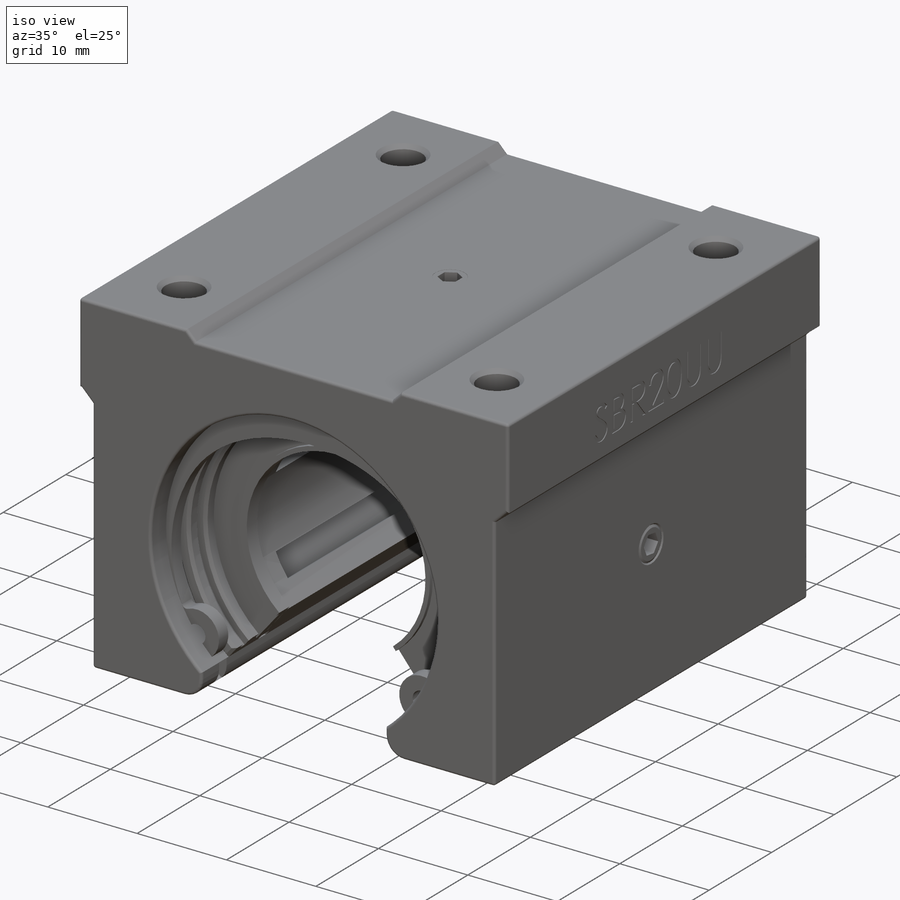
[diagram: iso view]
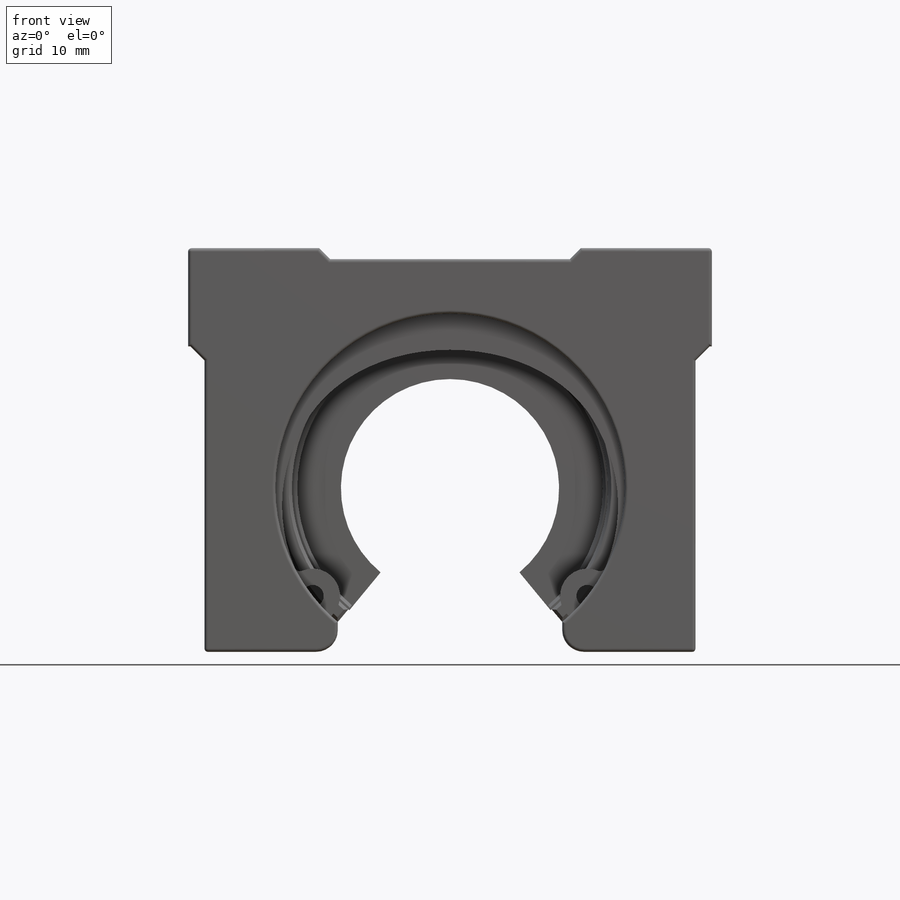
[diagram: front view]
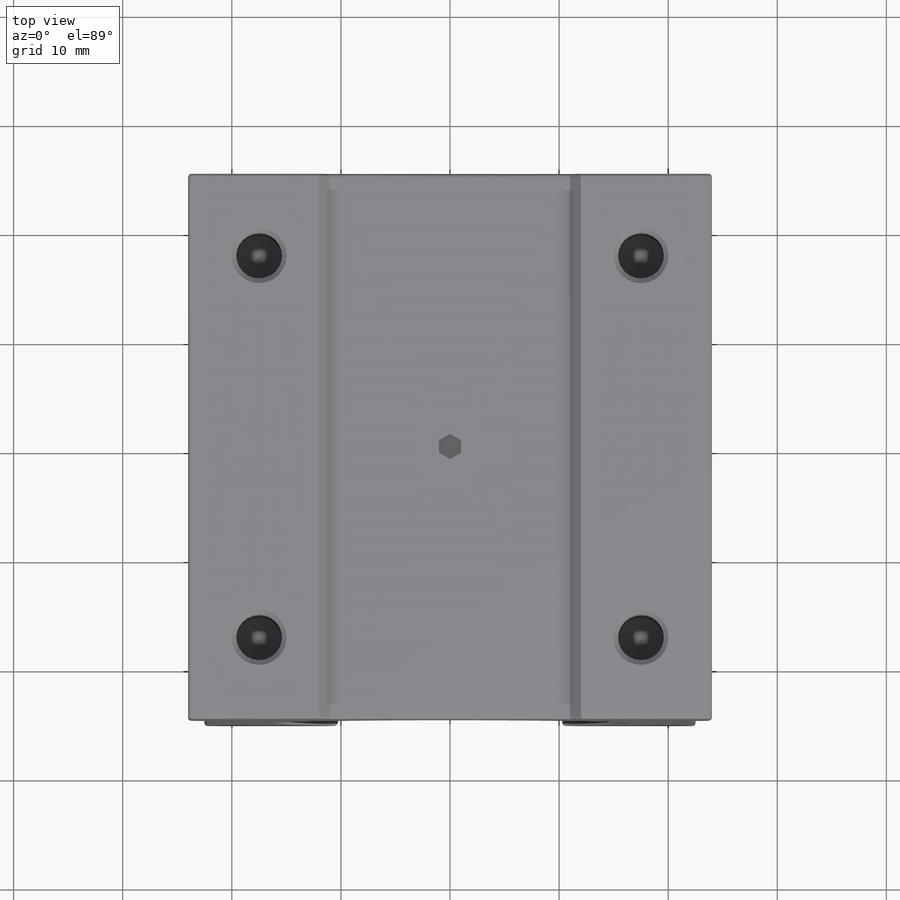
[diagram: top view]
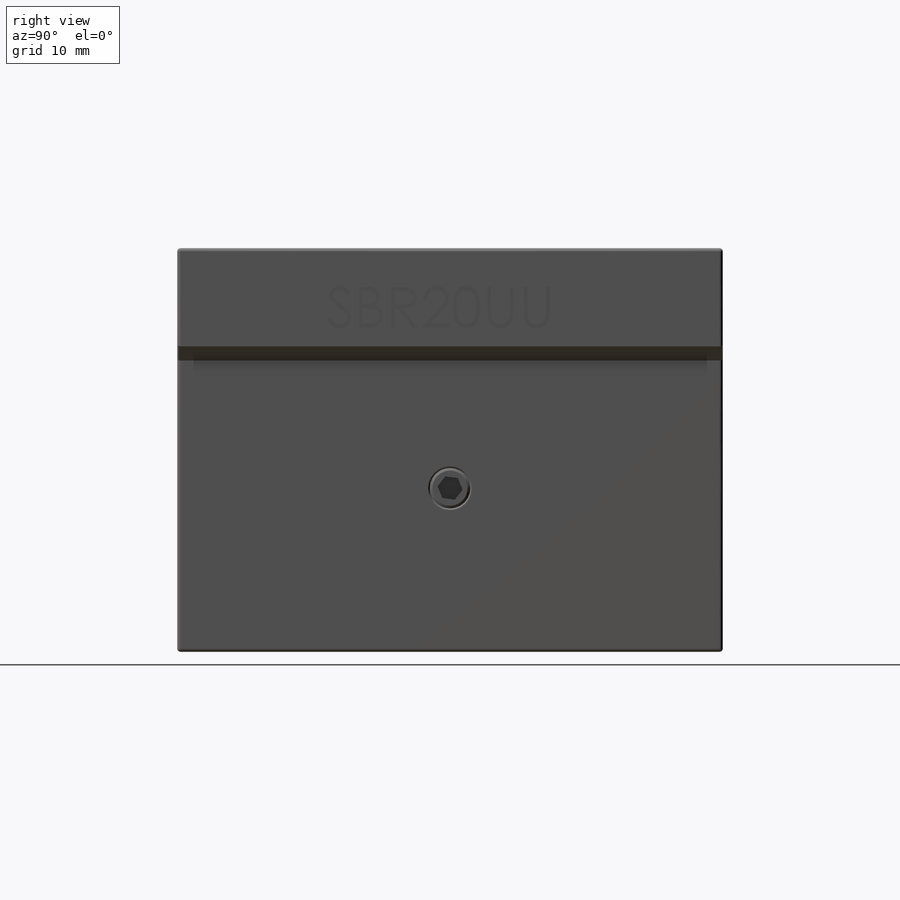
[diagram: right view]
SOLIDWORKS PART (.sldprt)
format: sldprt  version: not decoded by parser v0  size: 5,853,184 bytes
history: native  units: mm
features: sketch x20, thread x18, mirror x4, hole x3, chamfer x2, plane x2, cut_revolve x2, move_body x2, material x1, extrude x1, fillet x1, cut_extrude x1 + 5 further entries (+37 scaffold rows collapsed; 19 parser-record rows omitted)
feature tree (118):
  scaffold x37  (default folders/planes/origin — collapsed)
  material  "Material <not specified>"
  sketch  "Sketch1"  dims[c1.D1=~19.734952mm c1.D6=14.0mm c1.D10=16.0mm c1.D11=16.0mm c1.D5=14.0mm c2.D1=32.0mm c2.D2=48.0mm c2.D3=9.0mm c2.D4=45.0mm c2.D5=~6.277806mm c3.D5=80.0deg c3.D6=~7.563656mm c3.D7=21.0mm c3.D8=1.0mm c3.D9=12.0mm c3.D11=19.0mm c4.D6=6.0mm c4.D7=~3.226614mm c4.D5=~8.999027mm c5.D5=40.0deg c5.D7=22.0mm c5.D1=~1.275378mm c5.D10=37.0mm]
  extrude  "Boss-Extrude1"  Depth=25mm
  mirror  "Mirror1"
  chamfer  "Chamfer1"  Distance=1mm Angle=45deg
  chamfer  "Chamfer2"  Distance=1.3mm Angle=45deg
  fillet  "Fillet2"  Radius=0.3mm
  sketch  "Sketch3"
  cut_extrude  "Cut-Extrude1"  Depth=0.1mm
  sketch  "Sketch2"  dims[D1=17.5mm D2=17.5mm]
  hole  "M5 Tapped Hole1"  Diameter=4.2mm Depth=14mm
  sketch  "3DSketch1"
  sketch  "Sketch4"  dims[hole-wizard template sketch: 39 standard entries collapsed; hole parameters kept: c13.Tap Drill Dia.=4.2mm c13.Tap Drill Depth=14.0mm c13.Near C'Sink Dia.=5.05mm c13.D4=~33.297463mm c13.Near C'Sink Angle=90.0deg c14.D5=~14.816244mm c14.Drill Angle=118.0deg]
  thread  "Hole Thread3"  Diameter=12mm  [1 undecoded]
  mirror  "Mirror3"
  mirror  "Mirror4"
  plane  "Plane1"
  sketch  "Sketch5"  dims[c1.D1=0.13mm c1.D2=0.13mm c1.D3=5.0mm c1.D4=~45.536361mm c2.D3=21.0mm c2.D4=1.21mm]
  cut_revolve  "Groove for DIN 472 - 28 x 1.2, Circlip for bores - normal1"  [1 undecoded]
  thread  "CurrentVersion"  [2 undecoded]
  thread  "EditFunction"  [2 undecoded]
  thread  "Type"  [2 undecoded]
  thread  "SubType"  [2 undecoded]
  thread  "Application"  [2 undecoded]
  thread  "CurrentVersion"  [2 undecoded]
  thread  "EditFunction"  [2 undecoded]
  thread  "Type"  [2 undecoded]
  thread  "SubType"  [2 undecoded]
  thread  "STANDARD"  [2 undecoded]
  thread  "TYPE"  [2 undecoded]
  thread  "SIZE"  [2 undecoded]
  thread  "GROOVE_LOCATION"  [2 undecoded]
  cut_revolve  "CimRetRingSettings6.1"  [1 undecoded]
  thread  "STANDARD"  [2 undecoded]
  thread  "TYPE"  [2 undecoded]
  thread  "SIZE"  [2 undecoded]
  thread  "GROOVE_LOCATION"  [2 undecoded]
  plane  "Plane2"
  mirror  "Mirror5"
  hole  "M4 Tapped Hole1"  Diameter=3.3mm Depth=4mm
  sketch  "Sketch6"
  sketch  "Sketch7"  dims[hole-wizard template sketch: 47 standard entries collapsed; hole parameters kept: c15.Tap Drill Depth=4.0mm c15.D3=~14.816244mm c15.Drill Angle=118.0deg]
  sketch  "Hole Thread4"  dims[D1=4.0mm D2=4.0mm]
  hole  "M4 Tapped Hole2"  Diameter=3.3mm Depth=6.1mm
  sketch  "Sketch8"
  sketch  "Sketch9"  dims[hole-wizard template sketch: 39 standard entries collapsed; hole parameters kept: c13.Tap Drill Dia.=3.3mm c13.Tap Drill Depth=6.1mm c13.Near C'Sink Dia.=4.0mm c13.D4=~33.297463mm c13.Near C'Sink Angle=90.0deg c14.D5=~14.816244mm c14.Drill Angle=118.0deg]
  sketch  "Hole Thread5"  dims[D1=5.4mm D2=4.0mm]
  sketch  "Sketch1-Retaining clip sbr201"  dims[c1.D1=36.0mm c1.D3=~1.946591mm c1.D5=32.0mm c1.D6=2.0mm c1.D4=0.5mm c2.D6=0.5mm c2.D7=2.0mm c2.D8=1.5mm c2.D3=28.0mm c3.D3=45.0deg c4.D3=~9.899495mm c5.D3=90.0deg c5.D2=15.5mm c5.D7=~2.611179mm c6.D2=4.0mm c6.D4=1.0mm]
  "Retaining clip sbr201"
  parser-record x19  (decoder bookkeeping rows leaked as tree rows — omitted from the tree; the rows remain in map.json)
  sketch  "Sketch1-Retaining clip sbr20"  dims[c1.D1=36.0mm c1.D3=~1.946591mm c1.D5=32.0mm c1.D6=2.0mm c1.D4=0.5mm c2.D6=0.5mm c2.D7=2.0mm c2.D8=1.5mm c2.D3=28.0mm c3.D3=45.0deg c4.D3=~9.899495mm c5.D3=90.0deg c5.D2=15.5mm c5.D7=~2.611179mm c6.D2=4.0mm c6.D4=1.0mm]
  "Retaining clip sbr20"
  sketch  "Sketch1-SBR20 - bearing insert"  dims[c1.D1=32.0mm c1.D2=28.0mm c1.D3=~12.011393mm c2.D3=80.0deg c2.D4=11.0mm c2.D2=3.0mm]
  sketch  "Sketch2-SBR20 - bearing insert"  dims[c1.D1=~0.632183mm c1.D2=~0.833332mm c2.D1=1.2mm c2.D2=0.6mm c2.D3=5.0mm c2.D4=14.0mm c2.D5=~0.58394mm c2.D6=~0.67737mm c3.D5=11.5mm c3.D6=0.5mm c3.D7=0.7mm c3.D8=0.5mm c4.D5=1.25mm c4.D6=~2.26882mm c4.D8=11.0mm c4.D9=11.5mm c4.D10=12.0mm c4.D11=~0.247283mm c5.D11=135.0deg c5.D6=1.95mm c5.D4=14.0mm c6.D6=14.5mm c6.D8=15.0mm c6.D9=14.0mm c6.D10=~0.611566mm c6.D11=1.2mm c7.D10=0.6mm c7.D11=1.2mm c7.D12=5.0mm c7.D2=16.0mm]
  sketch  "Sketch3-SBR20 - bearing insert"  dims[c1.D1=~2.025094mm c1.D2=16.25mm c2.D1=8.5mm c2.D2=11.0mm c2.D3=16.5mm c3.D1=10.5mm c3.D2=14.0mm]
  sketch  "Sketch4-SBR20 - bearing insert"  dims[c1.D1=0.0mm c1.D2=0.95mm c2.D1=~0.537542mm c2.D2=0.95mm c3.D1=~0.670725mm c3.D2=0.3mm c4.D1=8.0mm c4.D2=0.5mm c5.D1=14.5mm c5.D3=1.94mm c5.D4=1.64mm c6.D3=1.94mm c6.D4=10.0mm c7.D3=1.2mm c7.D5=0.5mm c7.D2=0.5mm]
  sketch  "Sketch5-SBR20 - bearing insert"  dims[c1.D1=~2.006512mm c1.D2=~14.101471mm c2.D1=14.0mm c2.D2=13.0mm c2.D3=10.5mm c2.D4=~25.564703mm c3.D1=27.0mm c3.D4=1.8mm]
  sketch  "Sketch7-SBR20 - bearing insert"  dims[c1.D1=~0.885827mm c1.D2=1.5mm c1.D3=~0.935719mm c2.D2=1.5mm c2.D1=9.0mm c3.D2=~1.871437mm c3.D1=1.5mm c3.D3=11.5mm c3.D4=~2.777566mm]
  "SBR20 - bearing insert"
  "DIN 916 - M4 x 5-N"
  move_body  "Body-Move/Copy2"
  "DIN 916 - M4 x 5-N2"
  move_body  "Body-Move/Copy4"
decode coverage: 25 of 54 modeling features carry decoded parameters; 5 rows unclassified (native names shown)
note: ~ marks probable driven/reference dimensions
note: 37 parameter values undecoded
summary: no parameter record found for 19 features
note: suppression state not decoded; provenance and decode notes live in map.json
